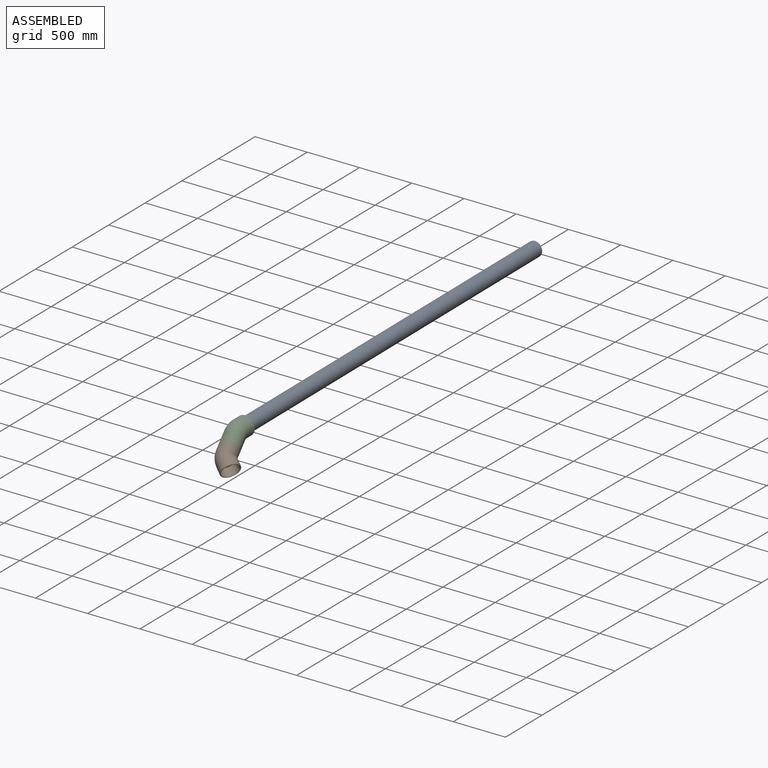
[diagram: assembled view]
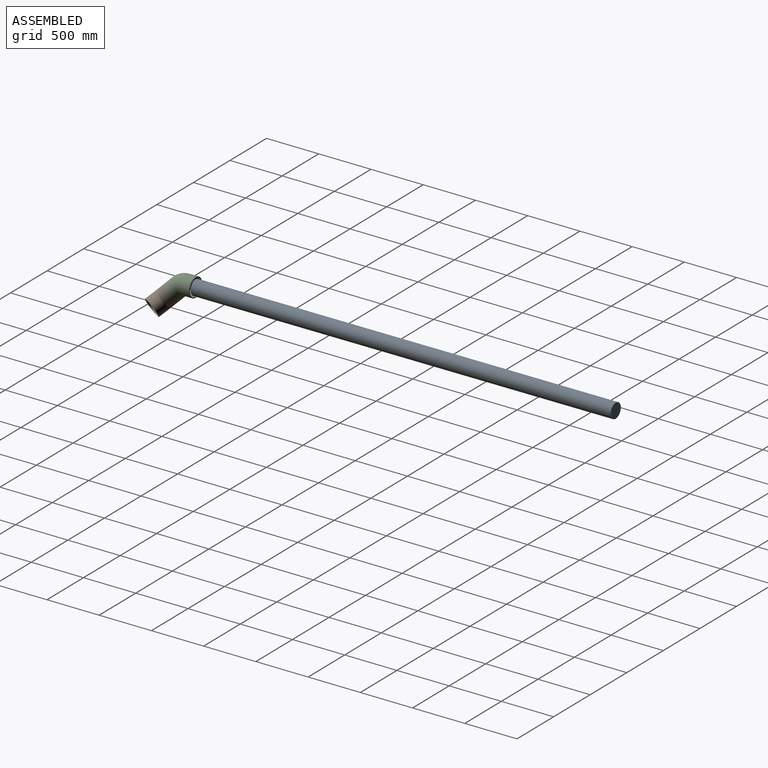
[diagram: assembled view, second angle]
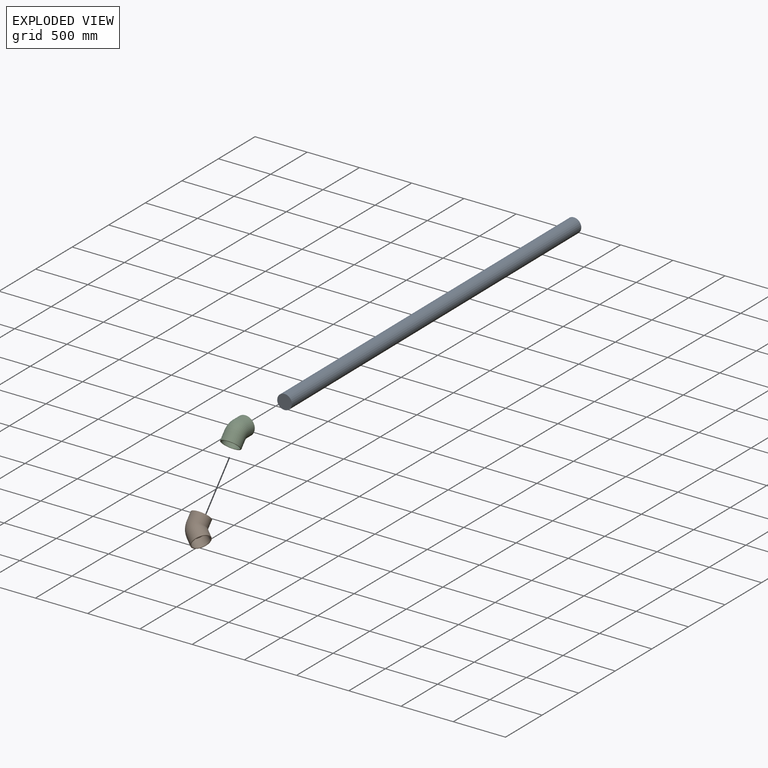
[diagram: exploded view]
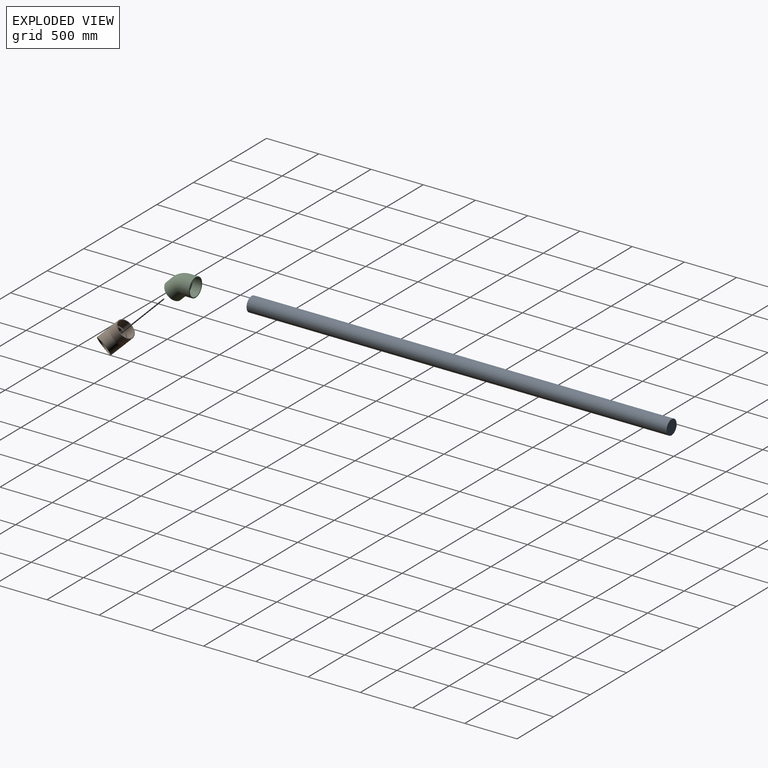
[diagram: exploded view, second angle]
ASSEMBLY  parts=3 mates=2
PART A: 3 faces, bbox 4000x139.8x139.8 mm
  f0: plane 139.8x139.8mm, normal (-1,0,0), area 15349.9mm2, adj f2
  f1: plane 139.8x139.8mm, normal (1,0,0), area 15349.9mm2, adj f2
  f2: cylinder r=69.9mm len=4000mm, axis (1,0,0), area 1756778.6mm2, adj f0,f1
PART B: 14 faces, bbox 260.4x194.8x279.1 mm
  f0: plane 160x113.14mm, normal (0.71,0,0.71), area 7238.2mm2, adj f6,f9
  f1: plane 176x176mm, normal (0,0,-1), area 3461.2mm2, adj f11,f12
  f2: torus R=90.9mm, axis (0,1,0), area 40371.6mm2, adj f3,f8
  f3: cylinder r=90mm len=180mm, axis (0,0,-1), area 47500.9mm2, adj f2,f12
  f4: cylinder r=80mm len=160mm, axis (0,0,-1), area 40414.4mm2, adj f5,f11
  f5: plane 160x160mm, normal (0,0,-1), area 7238.2mm2, adj f4,f6
  f6: torus R=90.9mm, axis (0,1,0), area 28708.7mm2, adj f0,f5
  f7: plane 176x124.45mm, normal (0.71,0,0.71), area 3461.2mm2, adj f10,f13
  f8: cylinder r=90mm len=186.68mm, axis (-0.71,0,-0.71), area 47500.9mm2, adj f2,f13
  f9: cylinder r=80mm len=169.99mm, axis (-0.71,0,-0.71), area 40414.4mm2, adj f0,f10
  f10: cone r=80mm half-angle=15deg, axis (0.71,0,0.71), area 2940.5mm2, adj f7,f9
  f11: cone r=80mm half-angle=15deg, axis (0,0,-1), area 2940.5mm2, adj f1,f4
  f12: torus R=88mm, axis (0,0,-1), area 1762.2mm2, adj f1,f3
  f13: torus R=88mm, axis (0.71,0,0.71), area 1762.2mm2, adj f7,f8
PART C: same geometry as B
PLACE A rot(axis=(-0.58,-0.59,0.56),122deg) t=(0.63,2634.76,429.98)mm fixed
PLACE B rot(axis=(-0.65,-0.68,0.35),63.6deg) t=(115.73,374.97,290.27)mm
PLACE C rot(axis=(-0.38,0.34,0.86),97.8deg) t=(21.07,548.68,343.39)mm
MATE revolute A.f2 <-> C.f8  axis (0.01,-1,0) through (15.75,634.82,434)mm
MATE revolute C.f3 <-> B.f8  axis (0.04,-0.71,-0.7) through (21.76,425.01,348.51)mm
